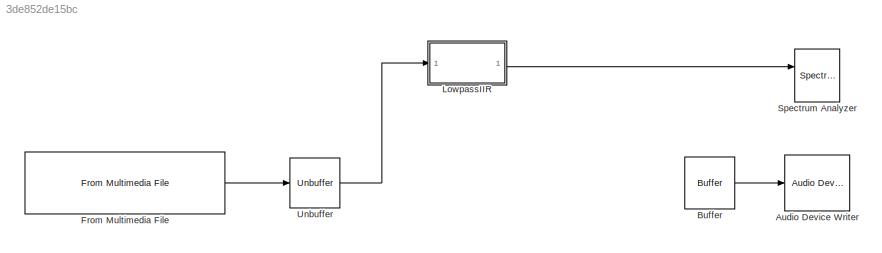
MODEL slx_3de852de15bc
KIND model
CONFIG AbsTol = auto
CONFIG EnableMultiTasking = on
CONFIG FixedStep = auto
CONFIG MaxStep = auto
CONFIG MinStep = auto
CONFIG RelTol = 1e-3
CONFIG SampleTimeConstraint = Unconstrained
CONFIG Solver = ode45
CONFIG SolverName = ode45
CONFIG StartTime = 0.0
CONFIG StopTime = Inf
BLOCK [Reference] Audio Device Writer  REF=dspsnks4/Audio Device
Writer
  Ports = [1]
  SourceBlock = dspsnks4/Audio Device\nWriter
  SourceProductBaseCode = DS
  SourceType = Audio Device Writer
BLOCK [Buffer] Buffer
  N = 1024
  OutputFrames = off
BLOCK [Reference] From Multimedia File  REF=dspvision/From Multimedia File
  Ports = [0, 1]
  SourceBlock = dspvision/From Multimedia File
  SourceProductBaseCode = DS,HW,VP
  SourceType = From Multimedia File
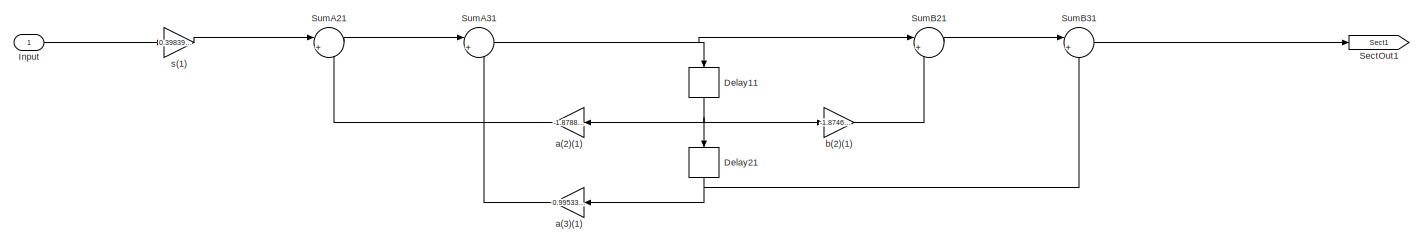
[diagram: LowpassIIR - part 1/6, left side, full height]
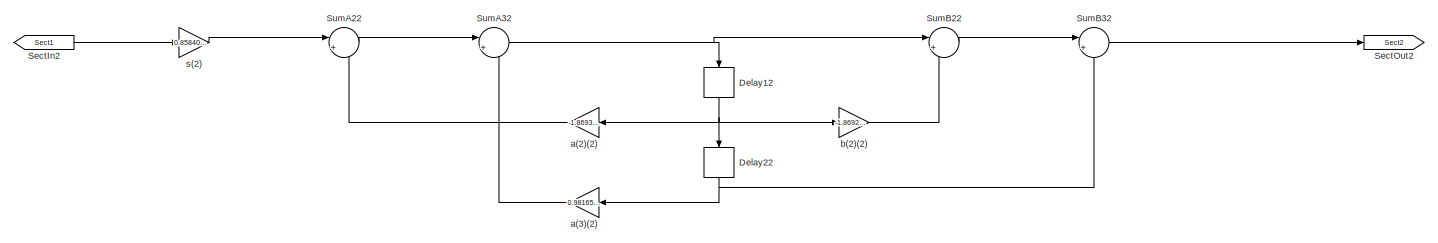
[diagram: LowpassIIR - part 2/6, left side, full height]
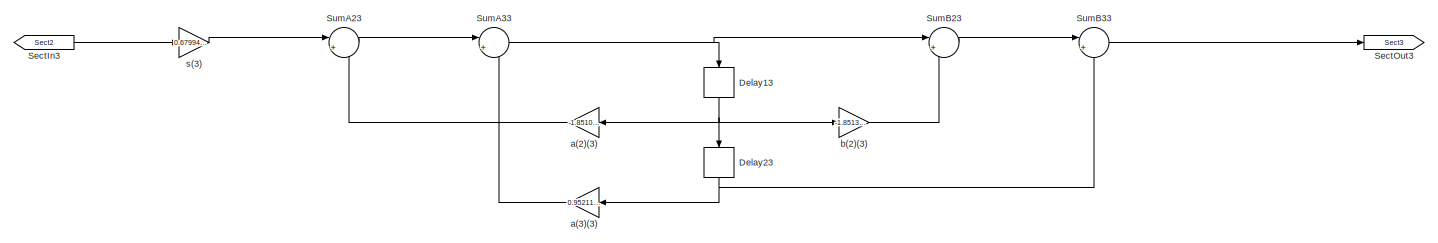
[diagram: LowpassIIR - part 3/6, center side, full height]
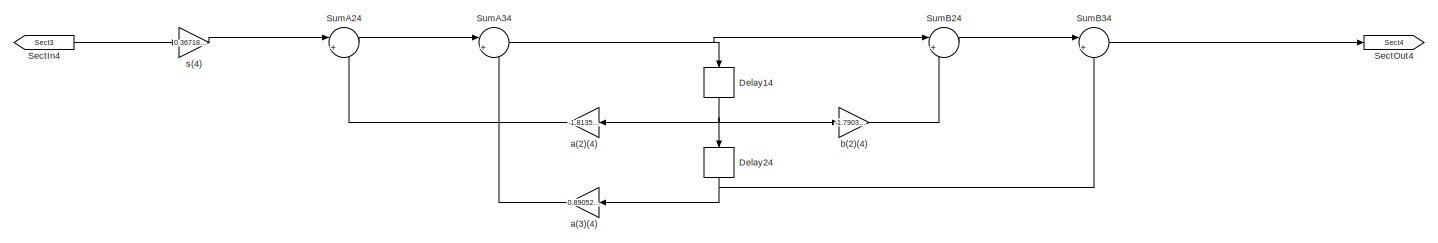
[diagram: LowpassIIR - part 4/6, center side, full height]
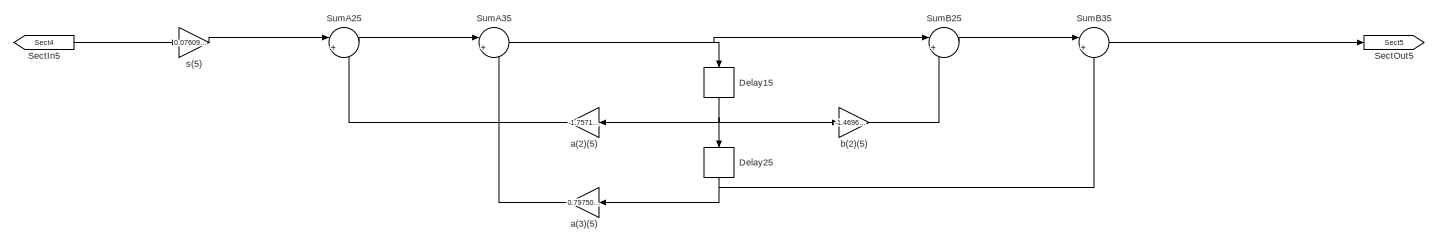
[diagram: LowpassIIR - part 5/6, right side, full height]
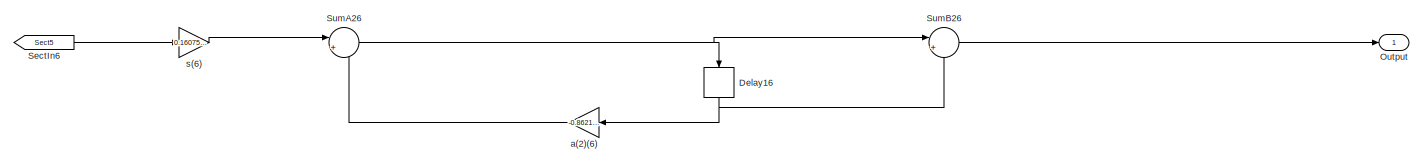
[diagram: LowpassIIR - part 6/6, middle right region]
BLOCK [SubSystem] LowpassIIR
  ErrorFcn = dspFilterRealizedInBasicElemsAlgLoopErrFcnCallback
  Ports = [1, 1]
  RequestExecContextInheritance = off
  Tag = FilterWizardSubSystem
  UserDataPersistent = on
BLOCK [Delay] LowpassIIR/Delay11
  DelayLength = 1
  InitialCondition = 0
  InputPortMap = u0
  NameLocation = right
  Ports = [1, 1]
BLOCK [Delay] LowpassIIR/Delay12
  DelayLength = 1
  InitialCondition = 0
  InputPortMap = u0
  NameLocation = right
  Ports = [1, 1]
BLOCK [Delay] LowpassIIR/Delay13
  DelayLength = 1
  InitialCondition = 0
  InputPortMap = u0
  NameLocation = right
  Ports = [1, 1]
BLOCK [Delay] LowpassIIR/Delay14
  DelayLength = 1
  InitialCondition = 0
  InputPortMap = u0
  NameLocation = right
  Ports = [1, 1]
BLOCK [Delay] LowpassIIR/Delay15
  DelayLength = 1
  InitialCondition = 0
  InputPortMap = u0
  NameLocation = right
  Ports = [1, 1]
BLOCK [Delay] LowpassIIR/Delay16
  DelayLength = 1
  InitialCondition = 0
  InputPortMap = u0
  NameLocation = right
  Ports = [1, 1]
BLOCK [Delay] LowpassIIR/Delay21
  DelayLength = 1
  InitialCondition = 0
  InputPortMap = u0
  NameLocation = right
  Ports = [1, 1]
BLOCK [Delay] LowpassIIR/Delay22
  DelayLength = 1
  InitialCondition = 0
  InputPortMap = u0
  NameLocation = right
  Ports = [1, 1]
BLOCK [Delay] LowpassIIR/Delay23
  DelayLength = 1
  InitialCondition = 0
  InputPortMap = u0
  NameLocation = right
  Ports = [1, 1]
BLOCK [Delay] LowpassIIR/Delay24
  DelayLength = 1
  InitialCondition = 0
  InputPortMap = u0
  NameLocation = right
  Ports = [1, 1]
BLOCK [Delay] LowpassIIR/Delay25
  DelayLength = 1
  InitialCondition = 0
  InputPortMap = u0
  NameLocation = right
  Ports = [1, 1]
BLOCK [Inport] LowpassIIR/Input
BLOCK [Outport] LowpassIIR/Output
BLOCK [From] LowpassIIR/SectIn2
  GotoTag = Sect1
BLOCK [From] LowpassIIR/SectIn3
  GotoTag = Sect2
BLOCK [From] LowpassIIR/SectIn4
  GotoTag = Sect3
BLOCK [From] LowpassIIR/SectIn5
  GotoTag = Sect4
BLOCK [From] LowpassIIR/SectIn6
  GotoTag = Sect5
BLOCK [Goto] LowpassIIR/SectOut1
  GotoTag = Sect1
BLOCK [Goto] LowpassIIR/SectOut2
  GotoTag = Sect2
BLOCK [Goto] LowpassIIR/SectOut3
  GotoTag = Sect3
BLOCK [Goto] LowpassIIR/SectOut4
  GotoTag = Sect4
BLOCK [Goto] LowpassIIR/SectOut5
  GotoTag = Sect5
BLOCK [Sum] LowpassIIR/SumA21
  Inputs = |+-
  OutDataTypeStr = Inherit: Same as first input
  Ports = [2, 1]
  RndMeth = Nearest
  SaturateOnIntegerOverflow = on
BLOCK [Sum] LowpassIIR/SumA22
  Inputs = |+-
  OutDataTypeStr = Inherit: Same as first input
  Ports = [2, 1]
  RndMeth = Nearest
  SaturateOnIntegerOverflow = on
BLOCK [Sum] LowpassIIR/SumA23
  Inputs = |+-
  OutDataTypeStr = Inherit: Same as first input
  Ports = [2, 1]
  RndMeth = Nearest
  SaturateOnIntegerOverflow = on
BLOCK [Sum] LowpassIIR/SumA24
  Inputs = |+-
  OutDataTypeStr = Inherit: Same as first input
  Ports = [2, 1]
  RndMeth = Nearest
  SaturateOnIntegerOverflow = on
BLOCK [Sum] LowpassIIR/SumA25
  Inputs = |+-
  OutDataTypeStr = Inherit: Same as first input
  Ports = [2, 1]
  RndMeth = Nearest
  SaturateOnIntegerOverflow = on
BLOCK [Sum] LowpassIIR/SumA26
  Inputs = |+-
  OutDataTypeStr = Inherit: Same as first input
  Ports = [2, 1]
  RndMeth = Nearest
  SaturateOnIntegerOverflow = on
BLOCK [Sum] LowpassIIR/SumA31
  Inputs = |+-
  OutDataTypeStr = Inherit: Same as first input
  Ports = [2, 1]
  RndMeth = Nearest
  SaturateOnIntegerOverflow = on
BLOCK [Sum] LowpassIIR/SumA32
  Inputs = |+-
  OutDataTypeStr = Inherit: Same as first input
  Ports = [2, 1]
  RndMeth = Nearest
  SaturateOnIntegerOverflow = on
BLOCK [Sum] LowpassIIR/SumA33
  Inputs = |+-
  OutDataTypeStr = Inherit: Same as first input
  Ports = [2, 1]
  RndMeth = Nearest
  SaturateOnIntegerOverflow = on
BLOCK [Sum] LowpassIIR/SumA34
  Inputs = |+-
  OutDataTypeStr = Inherit: Same as first input
  Ports = [2, 1]
  RndMeth = Nearest
  SaturateOnIntegerOverflow = on
BLOCK [Sum] LowpassIIR/SumA35
  Inputs = |+-
  OutDataTypeStr = Inherit: Same as first input
  Ports = [2, 1]
  RndMeth = Nearest
  SaturateOnIntegerOverflow = on
BLOCK [Sum] LowpassIIR/SumB21
  Inputs = |++
  OutDataTypeStr = Inherit: Same as first input
  Ports = [2, 1]
  RndMeth = Nearest
  SaturateOnIntegerOverflow = on
BLOCK [Sum] LowpassIIR/SumB22
  Inputs = |++
  OutDataTypeStr = Inherit: Same as first input
  Ports = [2, 1]
  RndMeth = Nearest
  SaturateOnIntegerOverflow = on
BLOCK [Sum] LowpassIIR/SumB23
  Inputs = |++
  OutDataTypeStr = Inherit: Same as first input
  Ports = [2, 1]
  RndMeth = Nearest
  SaturateOnIntegerOverflow = on
BLOCK [Sum] LowpassIIR/SumB24
  Inputs = |++
  OutDataTypeStr = Inherit: Same as first input
  Ports = [2, 1]
  RndMeth = Nearest
  SaturateOnIntegerOverflow = on
BLOCK [Sum] LowpassIIR/SumB25
  Inputs = |++
  OutDataTypeStr = Inherit: Same as first input
  Ports = [2, 1]
  RndMeth = Nearest
  SaturateOnIntegerOverflow = on
BLOCK [Sum] LowpassIIR/SumB26
  Inputs = |++
  OutDataTypeStr = Inherit: Same as first input
  Ports = [2, 1]
  RndMeth = Nearest
  SaturateOnIntegerOverflow = on
BLOCK [Sum] LowpassIIR/SumB31
  Inputs = |++
  OutDataTypeStr = Inherit: Same as first input
  Ports = [2, 1]
  RndMeth = Nearest
  SaturateOnIntegerOverflow = on
BLOCK [Sum] LowpassIIR/SumB32
  Inputs = |++
  OutDataTypeStr = Inherit: Same as first input
  Ports = [2, 1]
  RndMeth = Nearest
  SaturateOnIntegerOverflow = on
BLOCK [Sum] LowpassIIR/SumB33
  Inputs = |++
  OutDataTypeStr = Inherit: Same as first input
  Ports = [2, 1]
  RndMeth = Nearest
  SaturateOnIntegerOverflow = on
BLOCK [Sum] LowpassIIR/SumB34
  Inputs = |++
  OutDataTypeStr = Inherit: Same as first input
  Ports = [2, 1]
  RndMeth = Nearest
  SaturateOnIntegerOverflow = on
BLOCK [Sum] LowpassIIR/SumB35
  Inputs = |++
  OutDataTypeStr = Inherit: Same as first input
  Ports = [2, 1]
  RndMeth = Nearest
  SaturateOnIntegerOverflow = on
BLOCK [Gain] LowpassIIR/a(2)(1)
  Gain = -1.87887411164094287
  OutDataTypeStr = Inherit: Same as input
  ParamDataTypeStr = double
  RndMeth = Nearest
  SaturateOnIntegerOverflow = on
BLOCK [Gain] LowpassIIR/a(2)(2)
  Gain = -1.86938889660215057
  OutDataTypeStr = Inherit: Same as input
  ParamDataTypeStr = double
  RndMeth = Nearest
  SaturateOnIntegerOverflow = on
BLOCK [Gain] LowpassIIR/a(2)(3)
  Gain = -1.85103857272687655
  OutDataTypeStr = Inherit: Same as input
  ParamDataTypeStr = double
  RndMeth = Nearest
  SaturateOnIntegerOverflow = on
BLOCK [Gain] LowpassIIR/a(2)(4)
  Gain = -1.81356044973371122
  OutDataTypeStr = Inherit: Same as input
  ParamDataTypeStr = double
  RndMeth = Nearest
  SaturateOnIntegerOverflow = on
BLOCK [Gain] LowpassIIR/a(2)(5)
  Gain = -1.75714642696634749
  OutDataTypeStr = Inherit: Same as input
  ParamDataTypeStr = double
  RndMeth = Nearest
  SaturateOnIntegerOverflow = on
BLOCK [Gain] LowpassIIR/a(2)(6)
  Gain = -0.862147885429035199
  OutDataTypeStr = Inherit: Same as input
  ParamDataTypeStr = double
  RndMeth = Nearest
  SaturateOnIntegerOverflow = on
BLOCK [Gain] LowpassIIR/a(3)(1)
  Gain = 0.995334312073497873
  OutDataTypeStr = Inherit: Same as input
  ParamDataTypeStr = double
  RndMeth = Nearest
  SaturateOnIntegerOverflow = on
BLOCK [Gain] LowpassIIR/a(3)(2)
  Gain = 0.981652820727124231
  OutDataTypeStr = Inherit: Same as input
  ParamDataTypeStr = double
  RndMeth = Nearest
  SaturateOnIntegerOverflow = on
BLOCK [Gain] LowpassIIR/a(3)(3)
  Gain = 0.952110814082869572
  OutDataTypeStr = Inherit: Same as input
  ParamDataTypeStr = double
  RndMeth = Nearest
  SaturateOnIntegerOverflow = on
BLOCK [Gain] LowpassIIR/a(3)(4)
  Gain = 0.89052601668852216
  OutDataTypeStr = Inherit: Same as input
  ParamDataTypeStr = double
  RndMeth = Nearest
  SaturateOnIntegerOverflow = on
BLOCK [Gain] LowpassIIR/a(3)(5)
  Gain = 0.797502108834443613
  OutDataTypeStr = Inherit: Same as input
  ParamDataTypeStr = double
  RndMeth = Nearest
  SaturateOnIntegerOverflow = on
BLOCK [Gain] LowpassIIR/b(2)(1)
  Gain = -1.87466164839833538
  OutDataTypeStr = Inherit: Same as input
  ParamDataTypeStr = double
  RndMeth = Nearest
  SaturateOnIntegerOverflow = on
BLOCK [Gain] LowpassIIR/b(2)(2)
  Gain = -1.86921829081474966
  OutDataTypeStr = Inherit: Same as input
  ParamDataTypeStr = double
  RndMeth = Nearest
  SaturateOnIntegerOverflow = on
BLOCK [Gain] LowpassIIR/b(2)(3)
  Gain = -1.85135145393246603
  OutDataTypeStr = Inherit: Same as input
  ParamDataTypeStr = double
  RndMeth = Nearest
  SaturateOnIntegerOverflow = on
BLOCK [Gain] LowpassIIR/b(2)(4)
  Gain = -1.79039300454486972
  OutDataTypeStr = Inherit: Same as input
  ParamDataTypeStr = double
  RndMeth = Nearest
  SaturateOnIntegerOverflow = on
BLOCK [Gain] LowpassIIR/b(2)(5)
  Gain = -1.46966101911981695
  OutDataTypeStr = Inherit: Same as input
  ParamDataTypeStr = double
  RndMeth = Nearest
  SaturateOnIntegerOverflow = on
BLOCK [Gain] LowpassIIR/s(1)
  Gain = 0.398391035946394134
  OutDataTypeStr = Inherit: Same as input
  ParamDataTypeStr = double
  RndMeth = Nearest
  SaturateOnIntegerOverflow = on
BLOCK [Gain] LowpassIIR/s(2)
  Gain = 0.858406919624770004
  OutDataTypeStr = Inherit: Same as input
  ParamDataTypeStr = double
  RndMeth = Nearest
  SaturateOnIntegerOverflow = on
BLOCK [Gain] LowpassIIR/s(3)
  Gain = 0.679941001979759818
  OutDataTypeStr = Inherit: Same as input
  ParamDataTypeStr = double
  RndMeth = Nearest
  SaturateOnIntegerOverflow = on
BLOCK [Gain] LowpassIIR/s(4)
  Gain = 0.367189877359255124
  OutDataTypeStr = Inherit: Same as input
  ParamDataTypeStr = double
  RndMeth = Nearest
  SaturateOnIntegerOverflow = on
BLOCK [Gain] LowpassIIR/s(5)
  Gain = 0.0760941271960040994
  OutDataTypeStr = Inherit: Same as input
  ParamDataTypeStr = double
  RndMeth = Nearest
  SaturateOnIntegerOverflow = on
BLOCK [Gain] LowpassIIR/s(6)
  Gain = 0.160756089508545807
  OutDataTypeStr = Inherit: Same as input
  ParamDataTypeStr = double
  RndMeth = Nearest
  SaturateOnIntegerOverflow = on
BLOCK [SpectrumAnalyzer] Spectrum Analyzer
  NumInputPorts = 2
  Ports = [2]
  ScopeSpecificationString = spbscopes.SpectrumAnalyzerBlockCfg('CurrentConfiguration', extmgr.ConfigurationSet(extmgr.Configuration('Core','General UI',true),extmgr.Configuration('Core','Source UI',true),extmgr.Configuration('Sources','WiredSimulink',true),extmgr.Configuration('Visuals','Spectrum',true,'AxesProperties',struct('Color',{[0 0 0],[0 0 0]},'XColor',{[0.686274509803922 0.686274509803922 0.686274509803922],[0.68627...<+2211ch>
BLOCK [Unbuffer] Unbuffer
  Ports = [1, 1]
LINE Buffer:1 -> Audio Device Writer:1
LINE From Multimedia File:1 -> Unbuffer:1
NET LowpassIIR/Delay11:1 -> LowpassIIR/Delay21:1, LowpassIIR/a(2)(1):1, LowpassIIR/b(2)(1):1
NET LowpassIIR/Delay12:1 -> LowpassIIR/Delay22:1, LowpassIIR/a(2)(2):1, LowpassIIR/b(2)(2):1
NET LowpassIIR/Delay13:1 -> LowpassIIR/Delay23:1, LowpassIIR/a(2)(3):1, LowpassIIR/b(2)(3):1
NET LowpassIIR/Delay14:1 -> LowpassIIR/Delay24:1, LowpassIIR/a(2)(4):1, LowpassIIR/b(2)(4):1
NET LowpassIIR/Delay15:1 -> LowpassIIR/Delay25:1, LowpassIIR/a(2)(5):1, LowpassIIR/b(2)(5):1
NET LowpassIIR/Delay16:1 -> LowpassIIR/SumB26:2, LowpassIIR/a(2)(6):1
NET LowpassIIR/Delay21:1 -> LowpassIIR/SumB31:2, LowpassIIR/a(3)(1):1
NET LowpassIIR/Delay22:1 -> LowpassIIR/SumB32:2, LowpassIIR/a(3)(2):1
NET LowpassIIR/Delay23:1 -> LowpassIIR/SumB33:2, LowpassIIR/a(3)(3):1
NET LowpassIIR/Delay24:1 -> LowpassIIR/SumB34:2, LowpassIIR/a(3)(4):1
NET LowpassIIR/Delay25:1 -> LowpassIIR/SumB35:2, LowpassIIR/a(3)(5):1
LINE LowpassIIR/Input:1 -> LowpassIIR/s(1):1
LINE LowpassIIR/SectIn2:1 -> LowpassIIR/s(2):1
LINE LowpassIIR/SectIn3:1 -> LowpassIIR/s(3):1
LINE LowpassIIR/SectIn4:1 -> LowpassIIR/s(4):1
LINE LowpassIIR/SectIn5:1 -> LowpassIIR/s(5):1
LINE LowpassIIR/SectIn6:1 -> LowpassIIR/s(6):1
LINE LowpassIIR/SumA21:1 -> LowpassIIR/SumA31:1
LINE LowpassIIR/SumA22:1 -> LowpassIIR/SumA32:1
LINE LowpassIIR/SumA23:1 -> LowpassIIR/SumA33:1
LINE LowpassIIR/SumA24:1 -> LowpassIIR/SumA34:1
LINE LowpassIIR/SumA25:1 -> LowpassIIR/SumA35:1
NET LowpassIIR/SumA26:1 -> LowpassIIR/Delay16:1, LowpassIIR/SumB26:1
NET LowpassIIR/SumA31:1 -> LowpassIIR/Delay11:1, LowpassIIR/SumB21:1
NET LowpassIIR/SumA32:1 -> LowpassIIR/Delay12:1, LowpassIIR/SumB22:1
NET LowpassIIR/SumA33:1 -> LowpassIIR/Delay13:1, LowpassIIR/SumB23:1
NET LowpassIIR/SumA34:1 -> LowpassIIR/Delay14:1, LowpassIIR/SumB24:1
NET LowpassIIR/SumA35:1 -> LowpassIIR/Delay15:1, LowpassIIR/SumB25:1
LINE LowpassIIR/SumB21:1 -> LowpassIIR/SumB31:1
LINE LowpassIIR/SumB22:1 -> LowpassIIR/SumB32:1
LINE LowpassIIR/SumB23:1 -> LowpassIIR/SumB33:1
LINE LowpassIIR/SumB24:1 -> LowpassIIR/SumB34:1
LINE LowpassIIR/SumB25:1 -> LowpassIIR/SumB35:1
LINE LowpassIIR/SumB26:1 -> LowpassIIR/Output:1
LINE LowpassIIR/SumB31:1 -> LowpassIIR/SectOut1:1
LINE LowpassIIR/SumB32:1 -> LowpassIIR/SectOut2:1
LINE LowpassIIR/SumB33:1 -> LowpassIIR/SectOut3:1
LINE LowpassIIR/SumB34:1 -> LowpassIIR/SectOut4:1
LINE LowpassIIR/SumB35:1 -> LowpassIIR/SectOut5:1
LINE LowpassIIR/a(2)(1):1 -> LowpassIIR/SumA21:2
LINE LowpassIIR/a(2)(2):1 -> LowpassIIR/SumA22:2
LINE LowpassIIR/a(2)(3):1 -> LowpassIIR/SumA23:2
LINE LowpassIIR/a(2)(4):1 -> LowpassIIR/SumA24:2
LINE LowpassIIR/a(2)(5):1 -> LowpassIIR/SumA25:2
LINE LowpassIIR/a(2)(6):1 -> LowpassIIR/SumA26:2
LINE LowpassIIR/a(3)(1):1 -> LowpassIIR/SumA31:2
LINE LowpassIIR/a(3)(2):1 -> LowpassIIR/SumA32:2
LINE LowpassIIR/a(3)(3):1 -> LowpassIIR/SumA33:2
LINE LowpassIIR/a(3)(4):1 -> LowpassIIR/SumA34:2
LINE LowpassIIR/a(3)(5):1 -> LowpassIIR/SumA35:2
LINE LowpassIIR/b(2)(1):1 -> LowpassIIR/SumB21:2
LINE LowpassIIR/b(2)(2):1 -> LowpassIIR/SumB22:2
LINE LowpassIIR/b(2)(3):1 -> LowpassIIR/SumB23:2
LINE LowpassIIR/b(2)(4):1 -> LowpassIIR/SumB24:2
LINE LowpassIIR/b(2)(5):1 -> LowpassIIR/SumB25:2
LINE LowpassIIR/s(1):1 -> LowpassIIR/SumA21:1
LINE LowpassIIR/s(2):1 -> LowpassIIR/SumA22:1
LINE LowpassIIR/s(3):1 -> LowpassIIR/SumA23:1
LINE LowpassIIR/s(4):1 -> LowpassIIR/SumA24:1
LINE LowpassIIR/s(5):1 -> LowpassIIR/SumA25:1
LINE LowpassIIR/s(6):1 -> LowpassIIR/SumA26:1
LINE LowpassIIR:1 -> Spectrum Analyzer:1
LINE Unbuffer:1 -> LowpassIIR:1
note: NET lines group one-source signal fan-out (src -> all destinations, sorted); 1:1 wires keep LINE
